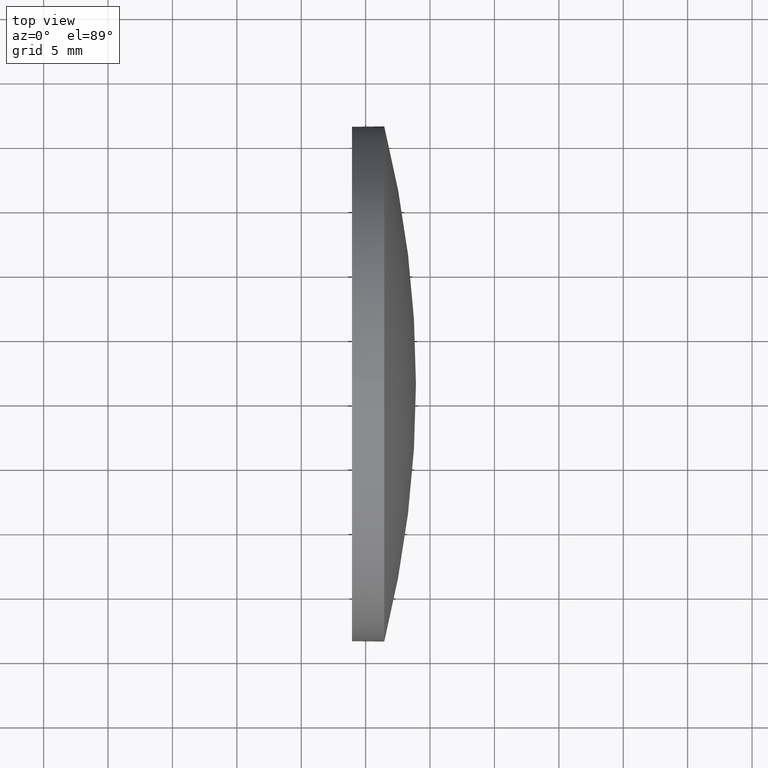
[diagram: clean part render]
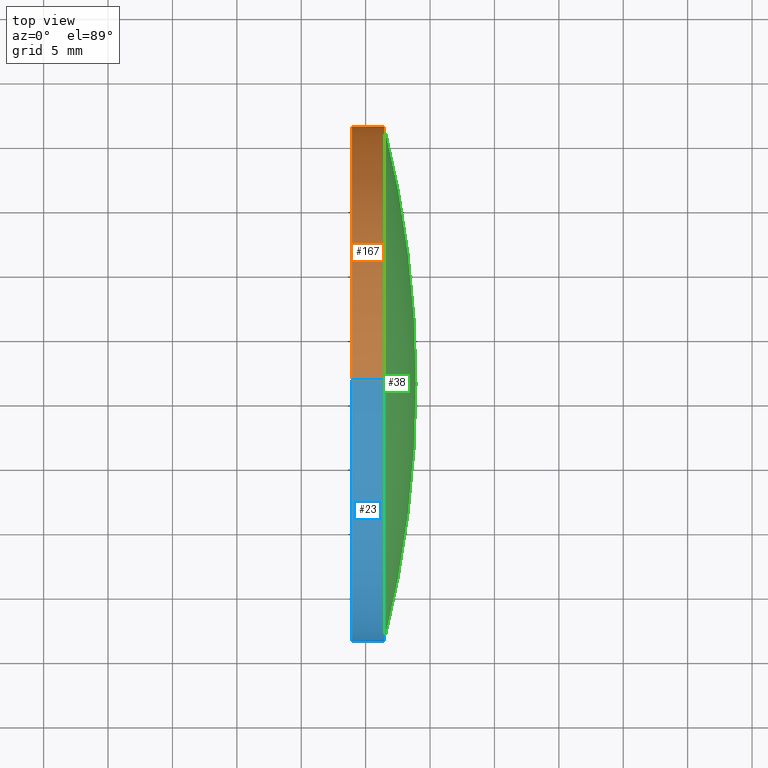
[diagram: same view with three faces highlighted in distinct colors, each labeled with its STEP entity id]
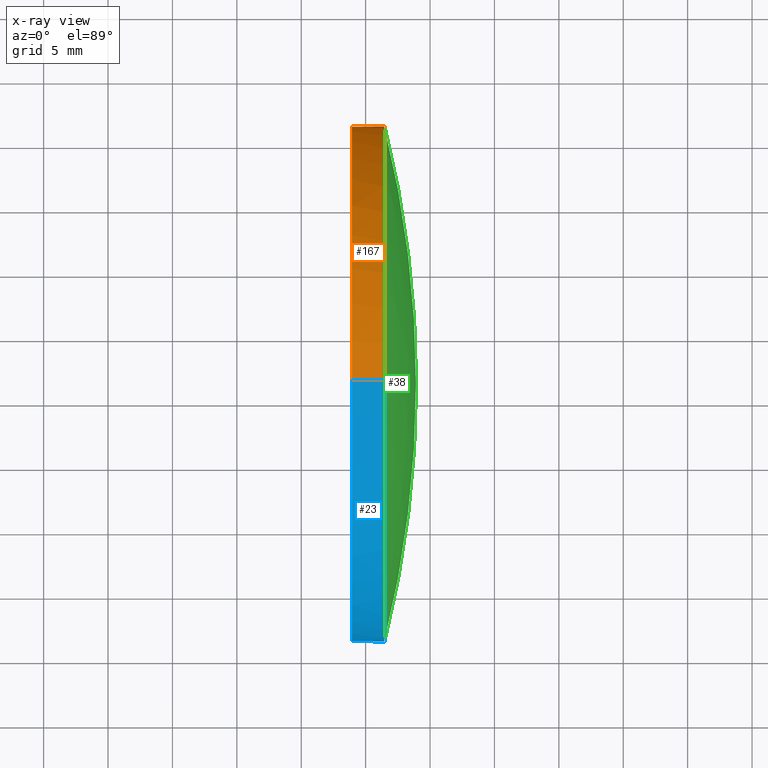
[diagram: x-ray of the same camera — body ghosted, the three highlighted faces saturated]
A machine part, top view with three faces highlighted in distinct colors.
The next image is the same camera in x-ray (body ghosted, the three faces saturated) — at least one of them is partly hidden behind the body in this view.
Their STEP definitions:

[orange] entity #167 — the highlighted cylindrical surface (partial cylindrical patch) has radius 20 mm, axis along (-1, -0, -0).
#1 = DIRECTION ( 'NONE',  ( 0.0000000000000000000, 0.0000000000000000000, 1.000000000000000000 ) ) ;
#3 = EDGE_CURVE ( 'NONE', #113, #154, #10, .T. ) ;
#10 = CIRCLE ( 'NONE', #125, 20.00000000000000400 ) ;
#16 = VECTOR ( 'NONE', #131, 1000.000000000000000 ) ;
#19 = EDGE_CURVE ( 'NONE', #103, #24, #116, .T. ) ;
#24 = VERTEX_POINT ( 'NONE', #118 ) ;
#27 = ORIENTED_EDGE ( 'NONE', *, *, #73, .T. ) ;
#40 = AXIS2_PLACEMENT_3D ( 'NONE', #152, #186, #105 ) ;
#41 = CARTESIAN_POINT ( 'NONE',  ( 644.2502178065157100, 6.345979496323141500, -20.00000000000000400 ) ) ;
#42 = EDGE_CURVE ( 'NONE', #113, #124, #145, .T. ) ;
#44 = EDGE_CURVE ( 'NONE', #124, #24, #48, .T. ) ;
#48 = CIRCLE ( 'NONE', #141, 20.00000000000000400 ) ;
#51 = ORIENTED_EDGE ( 'NONE', *, *, #44, .F. ) ;
#54 = CYLINDRICAL_SURFACE ( 'NONE', #130, 20.00000000000000400 ) ;
#58 = DIRECTION ( 'NONE',  ( -1.000000000000000000, -0.0000000000000000000, -0.0000000000000000000 ) ) ;
#61 = CARTESIAN_POINT ( 'NONE',  ( 644.2502178065157100, 6.345979496323138800, 0.0000000000000000000 ) ) ;
#63 = CARTESIAN_POINT ( 'NONE',  ( 651.4447609870927600, 6.345979496323138800, 20.00000000000000400 ) ) ;
#69 = EDGE_LOOP ( 'NONE', ( #27, #129, #51, #76, #170 ) ) ;
#73 = EDGE_CURVE ( 'NONE', #154, #103, #97, .T. ) ;
#75 = CARTESIAN_POINT ( 'NONE',  ( 651.4447609870927600, 6.345979496323141500, -20.00000000000000400 ) ) ;
#76 = ORIENTED_EDGE ( 'NONE', *, *, #42, .F. ) ;
#77 = DIRECTION ( 'NONE',  ( -1.000000000000000000, -0.0000000000000000000, -0.0000000000000000000 ) ) ;
#97 = CIRCLE ( 'NONE', #40, 20.00000000000000400 ) ;
#101 = DIRECTION ( 'NONE',  ( 0.0000000000000000000, 0.0000000000000000000, 1.000000000000000000 ) ) ;
#103 = VERTEX_POINT ( 'NONE', #75 ) ;
#105 = DIRECTION ( 'NONE',  ( 0.0000000000000000000, 0.0000000000000000000, 1.000000000000000000 ) ) ;
#106 = CARTESIAN_POINT ( 'NONE',  ( 648.9447609870927600, 6.345979496323138800, 20.00000000000000400 ) ) ;
#113 = VERTEX_POINT ( 'NONE', #63 ) ;
#115 = DIRECTION ( 'NONE',  ( -1.000000000000000000, -0.0000000000000000000, -0.0000000000000000000 ) ) ;
#116 = LINE ( 'NONE', #41, #16 ) ;
#118 = CARTESIAN_POINT ( 'NONE',  ( 648.9447609870927600, 6.345979496323141500, -20.00000000000000400 ) ) ;
#124 = VERTEX_POINT ( 'NONE', #106 ) ;
#125 = AXIS2_PLACEMENT_3D ( 'NONE', #172, #115, #101 ) ;
#129 = ORIENTED_EDGE ( 'NONE', *, *, #19, .T. ) ;
#130 = AXIS2_PLACEMENT_3D ( 'NONE', #61, #77, #177 ) ;
#131 = DIRECTION ( 'NONE',  ( -1.000000000000000000, -0.0000000000000000000, -0.0000000000000000000 ) ) ;
#132 = FACE_OUTER_BOUND ( 'NONE', #69, .T. ) ;
#141 = AXIS2_PLACEMENT_3D ( 'NONE', #150, #58, #1 ) ;
#145 = LINE ( 'NONE', #173, #169 ) ;
#150 = CARTESIAN_POINT ( 'NONE',  ( 648.9447609870927600, 6.345979496323138800, 0.0000000000000000000 ) ) ;
#152 = CARTESIAN_POINT ( 'NONE',  ( 651.4447609870927600, 6.345979496323138800, 0.0000000000000000000 ) ) ;
#154 = VERTEX_POINT ( 'NONE', #159 ) ;
#159 = CARTESIAN_POINT ( 'NONE',  ( 651.4447609870927600, 26.34597949632318100, 0.0000000000000000000 ) ) ;
#164 = DIRECTION ( 'NONE',  ( -1.000000000000000000, -0.0000000000000000000, -0.0000000000000000000 ) ) ;
#167 = ADVANCED_FACE ( 'NONE', ( #132 ), #54, .T. ) ;
#169 = VECTOR ( 'NONE', #164, 1000.000000000000000 ) ;
#170 = ORIENTED_EDGE ( 'NONE', *, *, #3, .T. ) ;
#172 = CARTESIAN_POINT ( 'NONE',  ( 651.4447609870927600, 6.345979496323138800, 0.0000000000000000000 ) ) ;
#173 = CARTESIAN_POINT ( 'NONE',  ( 644.2502178065157100, 6.345979496323138800, 20.00000000000000400 ) ) ;
#177 = DIRECTION ( 'NONE',  ( 0.0000000000000000000, 0.0000000000000000000, 1.000000000000000000 ) ) ;
#186 = DIRECTION ( 'NONE',  ( -1.000000000000000000, -0.0000000000000000000, -0.0000000000000000000 ) ) ;

[blue] entity #23 — the highlighted cylindrical surface (partial cylindrical patch) has radius 20 mm, axis along (-1, -0, -0).
#7 = AXIS2_PLACEMENT_3D ( 'NONE', #15, #17, #92 ) ;
#15 = CARTESIAN_POINT ( 'NONE',  ( 644.2502178065157100, 6.345979496323138800, 0.0000000000000000000 ) ) ;
#16 = VECTOR ( 'NONE', #131, 1000.000000000000000 ) ;
#17 = DIRECTION ( 'NONE',  ( -1.000000000000000000, -0.0000000000000000000, -0.0000000000000000000 ) ) ;
#18 = DIRECTION ( 'NONE',  ( -1.000000000000000000, -0.0000000000000000000, -0.0000000000000000000 ) ) ;
#19 = EDGE_CURVE ( 'NONE', #103, #24, #116, .T. ) ;
#22 = DIRECTION ( 'NONE',  ( -1.000000000000000000, -0.0000000000000000000, -0.0000000000000000000 ) ) ;
#23 = ADVANCED_FACE ( 'NONE', ( #62 ), #67, .T. ) ;
#24 = VERTEX_POINT ( 'NONE', #118 ) ;
#28 = CIRCLE ( 'NONE', #94, 20.00000000000000400 ) ;
#30 = CARTESIAN_POINT ( 'NONE',  ( 651.4447609870927600, -13.65402050367691300, -2.449293598294710900E-015 ) ) ;
#34 = DIRECTION ( 'NONE',  ( 0.0000000000000000000, 0.0000000000000000000, 1.000000000000000000 ) ) ;
#41 = CARTESIAN_POINT ( 'NONE',  ( 644.2502178065157100, 6.345979496323141500, -20.00000000000000400 ) ) ;
#42 = EDGE_CURVE ( 'NONE', #113, #124, #145, .T. ) ;
#43 = DIRECTION ( 'NONE',  ( 0.0000000000000000000, 0.0000000000000000000, 1.000000000000000000 ) ) ;
#52 = EDGE_CURVE ( 'NONE', #142, #113, #28, .T. ) ;
#57 = ORIENTED_EDGE ( 'NONE', *, *, #112, .T. ) ;
#62 = FACE_OUTER_BOUND ( 'NONE', #86, .T. ) ;
#63 = CARTESIAN_POINT ( 'NONE',  ( 651.4447609870927600, 6.345979496323138800, 20.00000000000000400 ) ) ;
#64 = ORIENTED_EDGE ( 'NONE', *, *, #19, .F. ) ;
#67 = CYLINDRICAL_SURFACE ( 'NONE', #7, 20.00000000000000400 ) ;
#68 = AXIS2_PLACEMENT_3D ( 'NONE', #175, #22, #34 ) ;
#71 = ORIENTED_EDGE ( 'NONE', *, *, #104, .F. ) ;
#74 = ORIENTED_EDGE ( 'NONE', *, *, #42, .T. ) ;
#75 = CARTESIAN_POINT ( 'NONE',  ( 651.4447609870927600, 6.345979496323141500, -20.00000000000000400 ) ) ;
#79 = CIRCLE ( 'NONE', #98, 20.00000000000000400 ) ;
#86 = EDGE_LOOP ( 'NONE', ( #64, #57, #135, #74, #71 ) ) ;
#92 = DIRECTION ( 'NONE',  ( 0.0000000000000000000, 0.0000000000000000000, 1.000000000000000000 ) ) ;
#94 = AXIS2_PLACEMENT_3D ( 'NONE', #149, #139, #160 ) ;
#98 = AXIS2_PLACEMENT_3D ( 'NONE', #117, #18, #43 ) ;
#103 = VERTEX_POINT ( 'NONE', #75 ) ;
#104 = EDGE_CURVE ( 'NONE', #24, #124, #140, .T. ) ;
#106 = CARTESIAN_POINT ( 'NONE',  ( 648.9447609870927600, 6.345979496323138800, 20.00000000000000400 ) ) ;
#112 = EDGE_CURVE ( 'NONE', #103, #142, #79, .T. ) ;
#113 = VERTEX_POINT ( 'NONE', #63 ) ;
#116 = LINE ( 'NONE', #41, #16 ) ;
#117 = CARTESIAN_POINT ( 'NONE',  ( 651.4447609870927600, 6.345979496323138800, 0.0000000000000000000 ) ) ;
#118 = CARTESIAN_POINT ( 'NONE',  ( 648.9447609870927600, 6.345979496323141500, -20.00000000000000400 ) ) ;
#124 = VERTEX_POINT ( 'NONE', #106 ) ;
#131 = DIRECTION ( 'NONE',  ( -1.000000000000000000, -0.0000000000000000000, -0.0000000000000000000 ) ) ;
#135 = ORIENTED_EDGE ( 'NONE', *, *, #52, .T. ) ;
#139 = DIRECTION ( 'NONE',  ( -1.000000000000000000, -0.0000000000000000000, -0.0000000000000000000 ) ) ;
#140 = CIRCLE ( 'NONE', #68, 20.00000000000000400 ) ;
#142 = VERTEX_POINT ( 'NONE', #30 ) ;
#145 = LINE ( 'NONE', #173, #169 ) ;
#149 = CARTESIAN_POINT ( 'NONE',  ( 651.4447609870927600, 6.345979496323138800, 0.0000000000000000000 ) ) ;
#160 = DIRECTION ( 'NONE',  ( 0.0000000000000000000, 0.0000000000000000000, 1.000000000000000000 ) ) ;
#164 = DIRECTION ( 'NONE',  ( -1.000000000000000000, -0.0000000000000000000, -0.0000000000000000000 ) ) ;
#169 = VECTOR ( 'NONE', #164, 1000.000000000000000 ) ;
#173 = CARTESIAN_POINT ( 'NONE',  ( 644.2502178065157100, 6.345979496323138800, 20.00000000000000400 ) ) ;
#175 = CARTESIAN_POINT ( 'NONE',  ( 648.9447609870927600, 6.345979496323138800, 0.0000000000000000000 ) ) ;

[green] entity #38 — the highlighted spherical surface has radius 82.5308 mm.
#2 = VERTEX_POINT ( 'NONE', #88 ) ;
#3 = EDGE_CURVE ( 'NONE', #113, #154, #10, .T. ) ;
#6 = DIRECTION ( 'NONE',  ( -0.0000000000000000000, 0.0000000000000000000, 1.000000000000000000 ) ) ;
#8 = EDGE_CURVE ( 'NONE', #2, #154, #156, .T. ) ;
#10 = CIRCLE ( 'NONE', #125, 20.00000000000000400 ) ;
#26 = CIRCLE ( 'NONE', #179, 82.53081300813025200 ) ;
#28 = CIRCLE ( 'NONE', #94, 20.00000000000000400 ) ;
#30 = CARTESIAN_POINT ( 'NONE',  ( 651.4447609870927600, -13.65402050367691300, -2.449293598294710900E-015 ) ) ;
#38 = ADVANCED_FACE ( 'NONE', ( #39 ), #165, .T. ) ;
#39 = FACE_OUTER_BOUND ( 'NONE', #110, .T. ) ;
#49 = ORIENTED_EDGE ( 'NONE', *, *, #52, .F. ) ;
#52 = EDGE_CURVE ( 'NONE', #142, #113, #28, .T. ) ;
#53 = CARTESIAN_POINT ( 'NONE',  ( 571.3739479789625200, 6.345979496323131700, 0.0000000000000000000 ) ) ;
#59 = CARTESIAN_POINT ( 'NONE',  ( 571.3739479789625200, 6.345979496323131700, 0.0000000000000000000 ) ) ;
#63 = CARTESIAN_POINT ( 'NONE',  ( 651.4447609870927600, 6.345979496323138800, 20.00000000000000400 ) ) ;
#65 = EDGE_CURVE ( 'NONE', #2, #142, #26, .T. ) ;
#88 = CARTESIAN_POINT ( 'NONE',  ( 653.9047609870928000, 6.345979496323137100, 0.0000000000000000000 ) ) ;
#89 = DIRECTION ( 'NONE',  ( 0.0000000000000000000, 1.000000000000000000, 0.0000000000000000000 ) ) ;
#91 = DIRECTION ( 'NONE',  ( -0.0000000000000000000, 0.0000000000000000000, -1.000000000000000000 ) ) ;
#94 = AXIS2_PLACEMENT_3D ( 'NONE', #149, #139, #160 ) ;
#101 = DIRECTION ( 'NONE',  ( 0.0000000000000000000, 0.0000000000000000000, 1.000000000000000000 ) ) ;
#102 = DIRECTION ( 'NONE',  ( 0.0000000000000000000, 1.000000000000000000, 1.224646799147353200E-016 ) ) ;
#107 = ORIENTED_EDGE ( 'NONE', *, *, #8, .T. ) ;
#110 = EDGE_LOOP ( 'NONE', ( #147, #107, #161, #49 ) ) ;
#113 = VERTEX_POINT ( 'NONE', #63 ) ;
#115 = DIRECTION ( 'NONE',  ( -1.000000000000000000, -0.0000000000000000000, -0.0000000000000000000 ) ) ;
#120 = CARTESIAN_POINT ( 'NONE',  ( 571.3739479789625200, 6.345979496323131700, 0.0000000000000000000 ) ) ;
#125 = AXIS2_PLACEMENT_3D ( 'NONE', #172, #115, #101 ) ;
#138 = DIRECTION ( 'NONE',  ( 0.0000000000000000000, 1.224646799147353200E-016, -1.000000000000000000 ) ) ;
#139 = DIRECTION ( 'NONE',  ( -1.000000000000000000, -0.0000000000000000000, -0.0000000000000000000 ) ) ;
#142 = VERTEX_POINT ( 'NONE', #30 ) ;
#146 = AXIS2_PLACEMENT_3D ( 'NONE', #53, #6, #163 ) ;
#147 = ORIENTED_EDGE ( 'NONE', *, *, #65, .F. ) ;
#149 = CARTESIAN_POINT ( 'NONE',  ( 651.4447609870927600, 6.345979496323138800, 0.0000000000000000000 ) ) ;
#154 = VERTEX_POINT ( 'NONE', #159 ) ;
#155 = AXIS2_PLACEMENT_3D ( 'NONE', #59, #91, #89 ) ;
#156 = CIRCLE ( 'NONE', #146, 82.53081300813025200 ) ;
#159 = CARTESIAN_POINT ( 'NONE',  ( 651.4447609870927600, 26.34597949632318100, 0.0000000000000000000 ) ) ;
#160 = DIRECTION ( 'NONE',  ( 0.0000000000000000000, 0.0000000000000000000, 1.000000000000000000 ) ) ;
#161 = ORIENTED_EDGE ( 'NONE', *, *, #3, .F. ) ;
#163 = DIRECTION ( 'NONE',  ( 1.000000000000000000, 0.0000000000000000000, 0.0000000000000000000 ) ) ;
#165 = SPHERICAL_SURFACE ( 'NONE', #155, 82.53081300813025200 ) ;
#172 = CARTESIAN_POINT ( 'NONE',  ( 651.4447609870927600, 6.345979496323138800, 0.0000000000000000000 ) ) ;
#179 = AXIS2_PLACEMENT_3D ( 'NONE', #120, #138, #102 ) ;